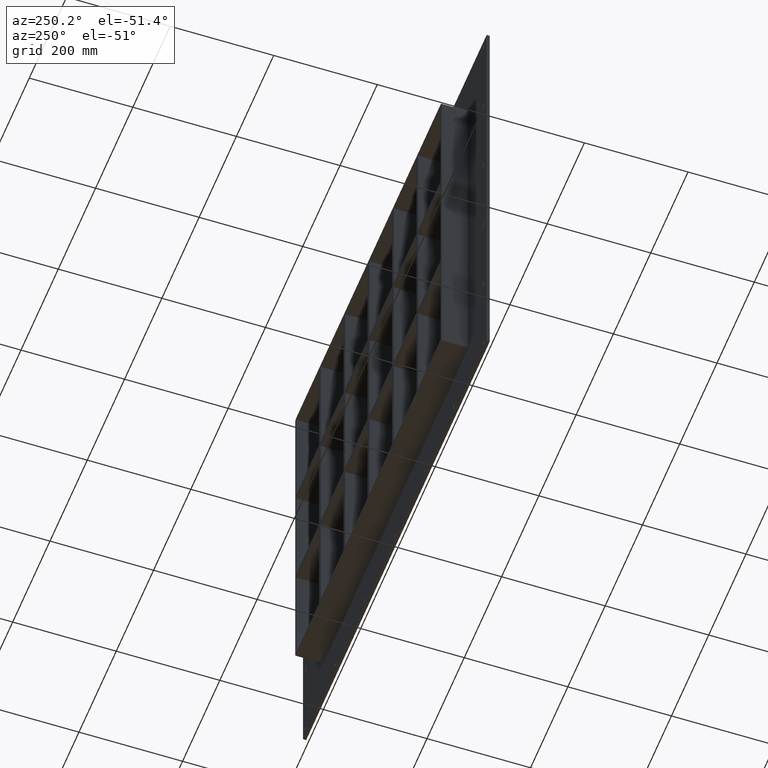
[diagram: clean part render]
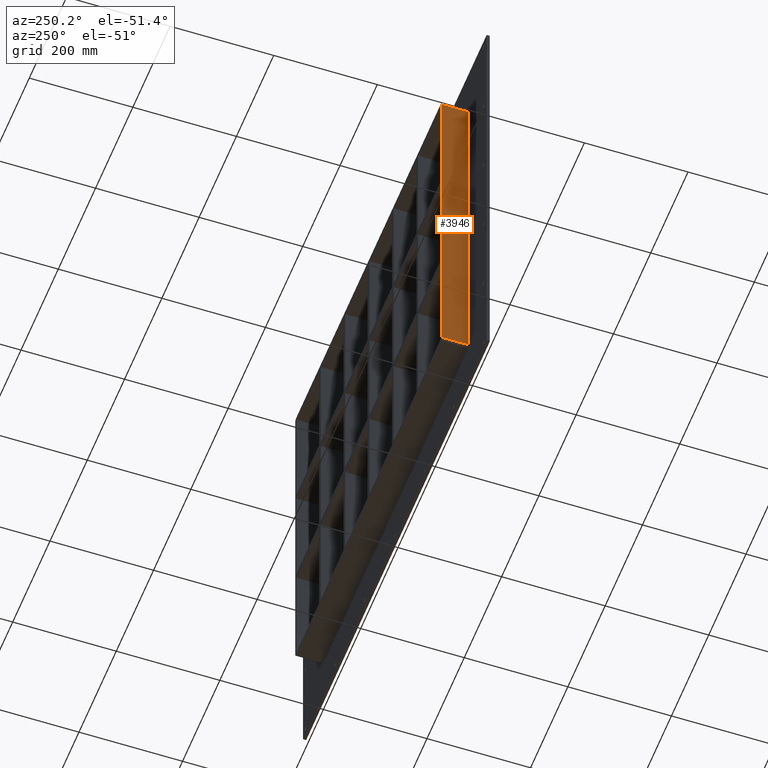
[diagram: same view with one face highlighted and labeled with its STEP entity id]
A machine part, auxiliary view. The second image highlights one B-rep face of the part: STEP entity #3946.
In plain terms, the highlighted planar face has unit normal (-1, 0, 0).
Its self-contained STEP definition (entity closure, byte-faithful):
#1622=CARTESIAN_POINT('',(-392.50000000000006,57.0,-339.00000000000006));
#1623=VERTEX_POINT('',#1622);
#1631=CARTESIAN_POINT('',(-392.50000000000006,57.0,339.0));
#1632=VERTEX_POINT('',#1631);
#1633=CARTESIAN_POINT('',(-392.50000000000006,57.0,-339.00000000000006));
#1634=DIRECTION('',(0.0,0.0,1.0));
#1635=VECTOR('',#1634,678.0);
#1636=LINE('',#1633,#1635);
#1637=EDGE_CURVE('',#1623,#1632,#1636,.T.);
#3379=CARTESIAN_POINT('',(-392.50000000000006,6.000000000000001,-339.00000000000006));
#3380=VERTEX_POINT('',#3379);
#3430=CARTESIAN_POINT('',(-392.50000000000006,6.000000000000001,339.00000000000006));
#3431=VERTEX_POINT('',#3430);
#3439=CARTESIAN_POINT('',(-392.50000000000006,6.000000000000001,-339.00000000000006));
#3440=DIRECTION('',(0.0,0.0,1.0));
#3441=VECTOR('',#3440,678.00000000000011);
#3442=LINE('',#3439,#3441);
#3443=EDGE_CURVE('',#3380,#3431,#3442,.T.);
#3919=CARTESIAN_POINT('',(-392.50000000000006,6.000000000000001,-339.00000000000006));
#3920=DIRECTION('',(0.0,1.0,0.0));
#3921=VECTOR('',#3920,51.0);
#3922=LINE('',#3919,#3921);
#3923=EDGE_CURVE('',#3380,#1623,#3922,.T.);
#3930=CARTESIAN_POINT('',(-392.50000000000006,0.0,-345.00000000000006));
#3931=DIRECTION('',(-1.0,0.0,0.0));
#3932=DIRECTION('',(0.0,0.0,1.0));
#3933=AXIS2_PLACEMENT_3D('',#3930,#3931,#3932);
#3934=PLANE('',#3933);
#3935=ORIENTED_EDGE('',*,*,#3443,.T.);
#3936=CARTESIAN_POINT('',(-392.50000000000006,57.0,339.00000000000006));
#3937=DIRECTION('',(0.0,-1.0,0.0));
#3938=VECTOR('',#3937,51.0);
#3939=LINE('',#3936,#3938);
#3940=EDGE_CURVE('',#1632,#3431,#3939,.T.);
#3941=ORIENTED_EDGE('',*,*,#3940,.F.);
#3942=ORIENTED_EDGE('',*,*,#1637,.F.);
#3943=ORIENTED_EDGE('',*,*,#3923,.F.);
#3944=EDGE_LOOP('',(#3935,#3941,#3942,#3943));
#3945=FACE_OUTER_BOUND('',#3944,.T.);
#3946=ADVANCED_FACE('',(#3945),#3934,.T.);